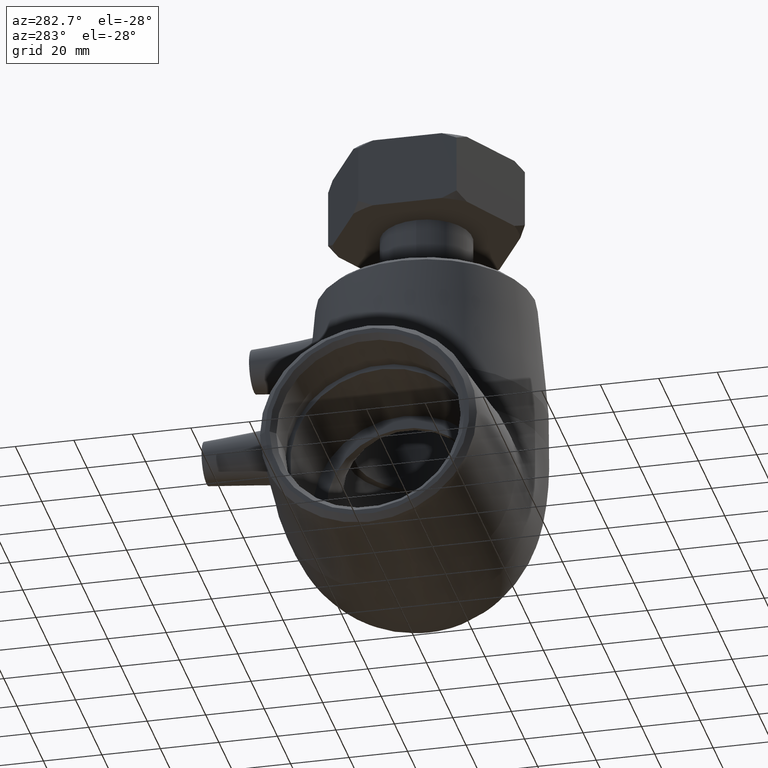
[diagram: clean part render]
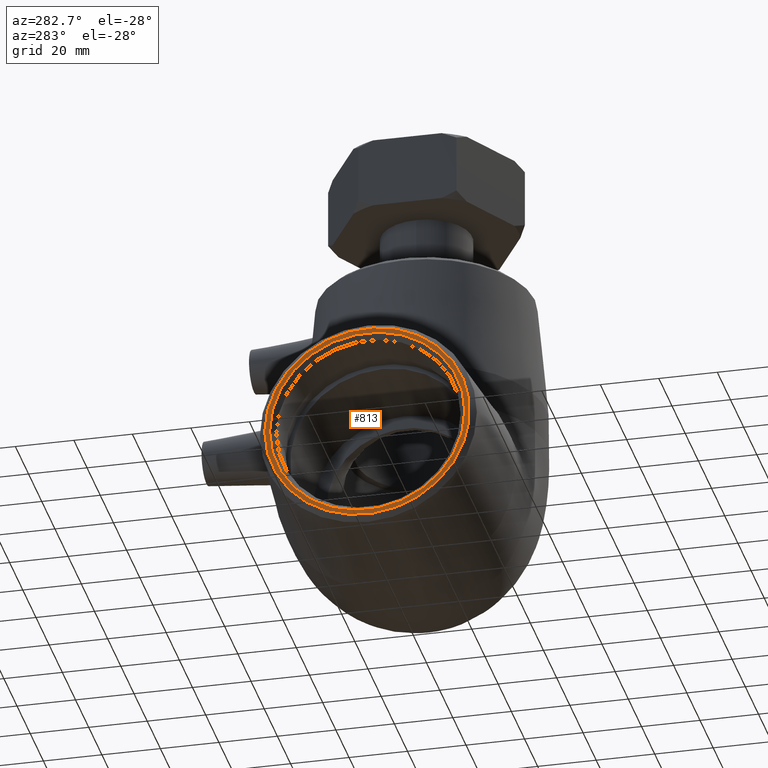
[diagram: same view with one face highlighted and labeled with its STEP entity id]
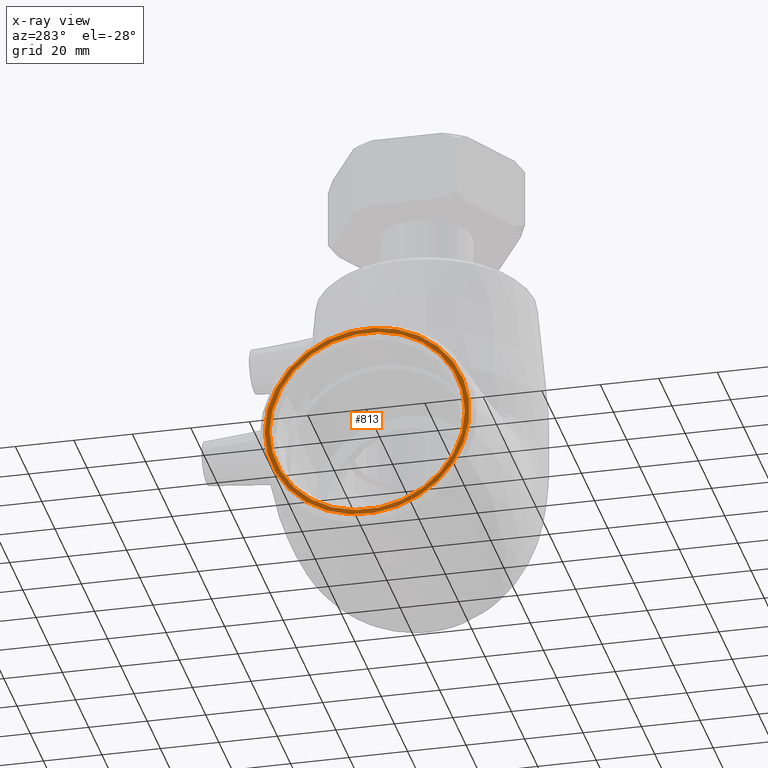
[diagram: x-ray of the same camera — body ghosted, the highlighted face saturated]
A machine part, auxiliary view. The second image highlights one B-rep face of the part: STEP entity #813.
The next image is the same camera in x-ray: the body ghosted, the highlighted face saturated — about 0% of this face is hidden behind the body in this view.
In plain terms, the highlighted planar face has unit normal (-1, 0, 0).
Its self-contained STEP definition (entity closure, byte-faithful):
#105=PLANE('',#903);
#128=FACE_BOUND('',#263,.T.);
#190=FACE_OUTER_BOUND('',#262,.T.);
#262=EDGE_LOOP('',(#690));
#263=EDGE_LOOP('',(#691));
#355=CIRCLE('',#902,33.39);
#356=CIRCLE('',#904,35.01);
#433=VERTEX_POINT('',#1410);
#434=VERTEX_POINT('',#1413);
#531=EDGE_CURVE('',#433,#433,#355,.T.);
#532=EDGE_CURVE('',#434,#434,#356,.T.);
#690=ORIENTED_EDGE('',*,*,#532,.F.);
#691=ORIENTED_EDGE('',*,*,#531,.F.);
#813=ADVANCED_FACE('',(#190,#128),#105,.T.);
#902=AXIS2_PLACEMENT_3D('',#1411,#1088,#1089);
#903=AXIS2_PLACEMENT_3D('',#1412,#1090,#1091);
#904=AXIS2_PLACEMENT_3D('',#1414,#1092,#1093);
#1088=DIRECTION('center_axis',(-1.,1.5419764230905E-18,0.));
#1089=DIRECTION('ref_axis',(-1.5419764230905E-18,-1.,0.));
#1090=DIRECTION('center_axis',(-1.,1.5419764230905E-18,0.));
#1091=DIRECTION('ref_axis',(0.,0.,1.));
#1092=DIRECTION('center_axis',(1.,-1.5419764230905E-18,0.));
#1093=DIRECTION('ref_axis',(-1.5419764230905E-18,-1.,0.));
#1410=CARTESIAN_POINT('',(-90.,33.39,-4.08909566235301E-15));
#1411=CARTESIAN_POINT('Origin',(-90.,1.92592994438724E-33,0.));
#1412=CARTESIAN_POINT('Origin',(-90.,36.9,0.));
#1413=CARTESIAN_POINT('',(-90.,35.01,4.28748844381488E-15));
#1414=CARTESIAN_POINT('Origin',(-90.,4.33334237487128E-33,0.));